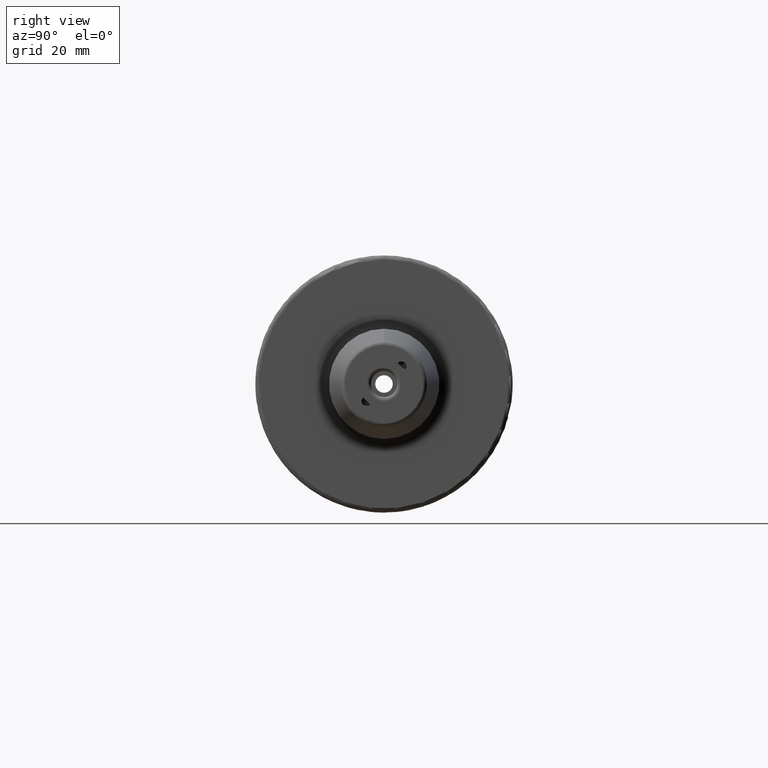
[diagram: clean part render]
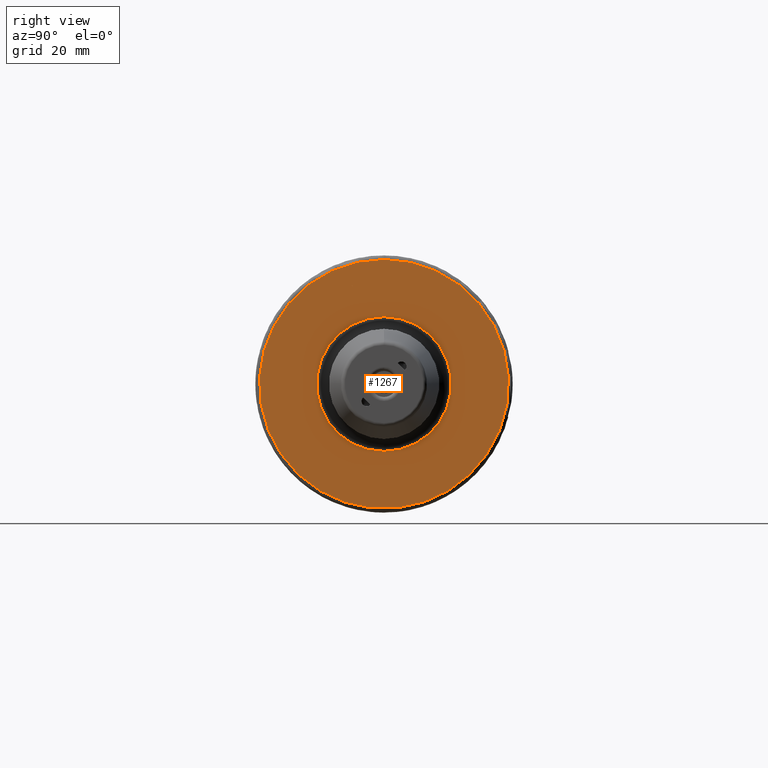
[diagram: same view with one face highlighted and labeled with its STEP entity id]
A machine part, right view. The second image highlights one B-rep face of the part: STEP entity #1267.
In plain terms, the highlighted planar face has unit normal (1, 0, 0).
Its self-contained STEP definition (entity closure, byte-faithful):
#48=FACE_BOUND('',#237,.T.);
#155=FACE_OUTER_BOUND('',#236,.T.);
#236=EDGE_LOOP('',(#912));
#237=EDGE_LOOP('',(#913));
#335=CIRCLE('',#1390,16.5);
#336=CIRCLE('',#1393,30.5);
#549=VERTEX_POINT('',#2018);
#550=VERTEX_POINT('',#2024);
#686=EDGE_CURVE('',#549,#549,#335,.T.);
#688=EDGE_CURVE('',#550,#550,#336,.T.);
#912=ORIENTED_EDGE('',*,*,#688,.T.);
#913=ORIENTED_EDGE('',*,*,#686,.F.);
#1231=PLANE('',#1392);
#1267=ADVANCED_FACE('',(#155,#48),#1231,.T.);
#1390=AXIS2_PLACEMENT_3D('',#2020,#1616,#1617);
#1392=AXIS2_PLACEMENT_3D('',#2023,#1621,#1622);
#1393=AXIS2_PLACEMENT_3D('',#2025,#1623,#1624);
#1616=DIRECTION('center_axis',(1.,0.,0.));
#1617=DIRECTION('ref_axis',(0.,-1.22464679914735E-16,1.));
#1621=DIRECTION('center_axis',(1.,0.,0.));
#1622=DIRECTION('ref_axis',(0.,0.,-1.));
#1623=DIRECTION('center_axis',(1.,0.,0.));
#1624=DIRECTION('ref_axis',(0.,0.,-1.));
#2018=CARTESIAN_POINT('',(27.,4.04133443718627E-15,-16.5));
#2020=CARTESIAN_POINT('Origin',(27.,0.,0.));
#2023=CARTESIAN_POINT('Origin',(27.,0.,0.));
#2024=CARTESIAN_POINT('',(27.,-3.73517273739943E-15,30.5));
#2025=CARTESIAN_POINT('Origin',(27.,0.,0.));